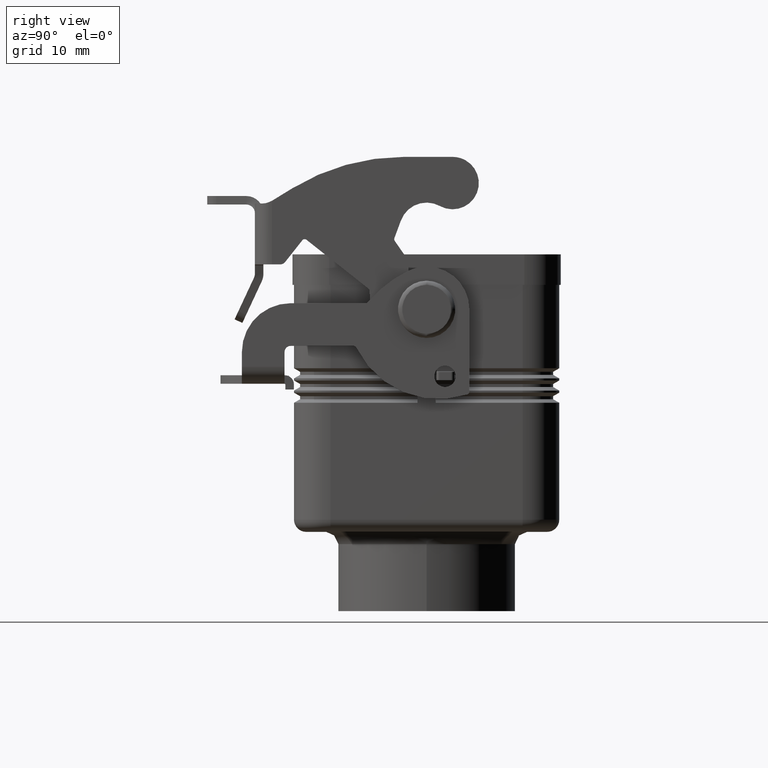
[diagram: clean part render]
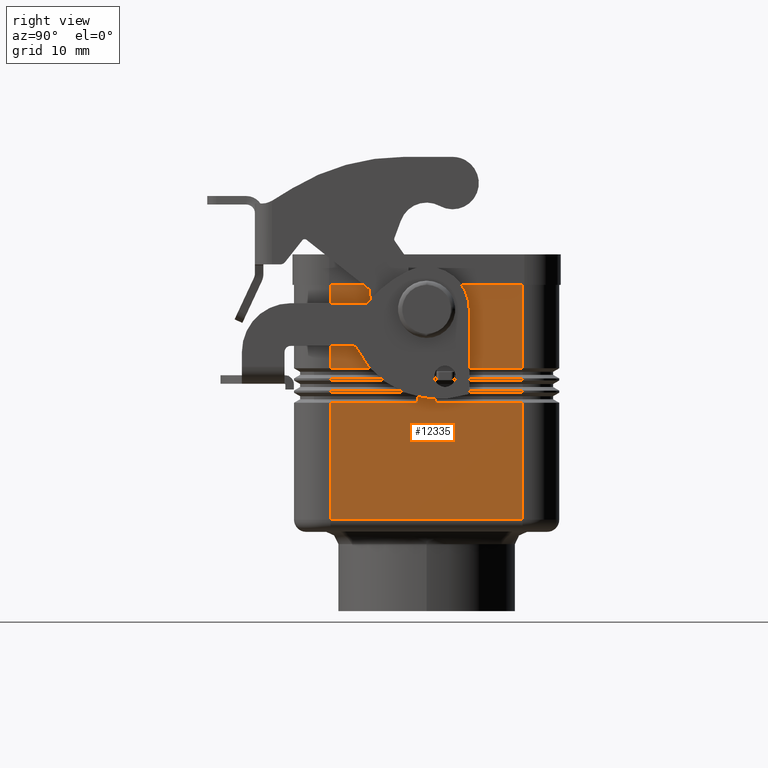
[diagram: same view with one face highlighted and labeled with its STEP entity id]
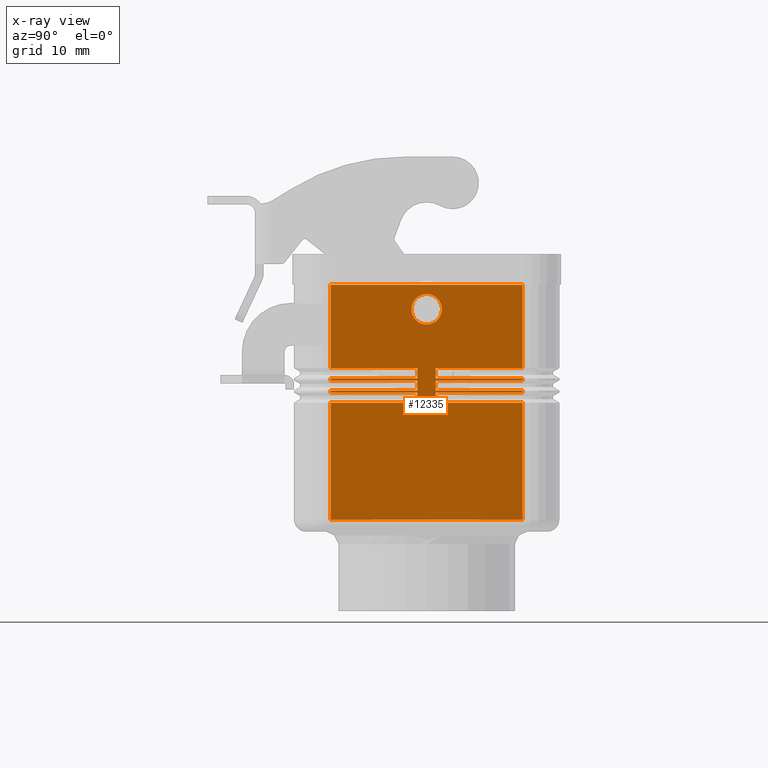
[diagram: x-ray of the same camera — body ghosted, the highlighted face saturated]
A machine part, right view. The second image highlights one B-rep face of the part: STEP entity #12335.
The next image is the same camera in x-ray: the body ghosted, the highlighted face saturated — about 0% of this face is hidden behind the body in this view.
In plain terms, the highlighted planar face has unit normal (1, 0, 0).
Its self-contained STEP definition (entity closure, byte-faithful):
#9078=CARTESIAN_POINT('',(30.000000000000018,0.0,2.500000000000018));
#9079=VERTEX_POINT('',#9078);
#9088=CARTESIAN_POINT('',(30.0,3.061516E-016,-2.499999999999985));
#9089=VERTEX_POINT('',#9088);
#9090=CARTESIAN_POINT('',(30.000000000000004,0.0,1.986582E-014));
#9091=DIRECTION('',(-1.0,0.0,0.0));
#9092=DIRECTION('',(0.0,0.0,1.0));
#9093=AXIS2_PLACEMENT_3D('',#9090,#9091,#9092);
#9094=CIRCLE('',#9093,2.500000000000005);
#9095=EDGE_CURVE('',#9089,#9079,#9094,.T.);
#9183=CARTESIAN_POINT('',(30.0,-1.500000000000000,-15.327350269189623));
#9184=VERTEX_POINT('',#9183);
#9185=CARTESIAN_POINT('',(29.999999999999996,-15.750000000000004,-15.327350269189619));
#9186=VERTEX_POINT('',#9185);
#9187=CARTESIAN_POINT('',(30.0,-1.500000000000000,-15.327350269189623));
#9188=DIRECTION('',(0.0,-1.0,0.0));
#9189=VECTOR('',#9188,14.250000000000004);
#9190=LINE('',#9187,#9189);
#9191=EDGE_CURVE('',#9184,#9186,#9190,.T.);
#9633=CARTESIAN_POINT('',(29.999999999999996,-15.750000000000004,-13.672649730810381));
#9634=VERTEX_POINT('',#9633);
#9704=CARTESIAN_POINT('',(30.0,-1.500000000000000,-13.672649730810377));
#9705=VERTEX_POINT('',#9704);
#9706=CARTESIAN_POINT('',(29.999999999999996,-15.750000000000004,-13.672649730810381));
#9707=DIRECTION('',(0.0,1.0,0.0));
#9708=VECTOR('',#9707,14.250000000000004);
#9709=LINE('',#9706,#9708);
#9710=EDGE_CURVE('',#9634,#9705,#9709,.T.);
#9752=CARTESIAN_POINT('',(30.0,-1.500000000000000,-13.672649730810377));
#9753=DIRECTION('',(0.0,0.0,-1.0));
#9754=VECTOR('',#9753,1.654700538379245);
#9755=LINE('',#9752,#9754);
#9756=EDGE_CURVE('',#9705,#9184,#9755,.T.);
#9769=CARTESIAN_POINT('',(30.0,-1.500000000000000,-13.327350269189623));
#9770=VERTEX_POINT('',#9769);
#9771=CARTESIAN_POINT('',(29.999999999999996,-15.750000000000004,-13.327350269189623));
#9772=VERTEX_POINT('',#9771);
#9773=CARTESIAN_POINT('',(30.0,-1.500000000000000,-13.327350269189623));
#9774=DIRECTION('',(0.0,-1.0,0.0));
#9775=VECTOR('',#9774,14.250000000000004);
#9776=LINE('',#9773,#9775);
#9777=EDGE_CURVE('',#9770,#9772,#9776,.T.);
#10219=CARTESIAN_POINT('',(29.999999999999996,-15.750000000000004,-11.672649730810383));
#10220=VERTEX_POINT('',#10219);
#10290=CARTESIAN_POINT('',(30.0,-1.500000000000000,-11.672649730810376));
#10291=VERTEX_POINT('',#10290);
#10292=CARTESIAN_POINT('',(29.999999999999996,-15.750000000000004,-11.672649730810383));
#10293=DIRECTION('',(0.0,1.0,0.0));
#10294=VECTOR('',#10293,14.250000000000004);
#10295=LINE('',#10292,#10294);
#10296=EDGE_CURVE('',#10220,#10291,#10295,.T.);
#10338=CARTESIAN_POINT('',(30.0,-1.500000000000000,-11.672649730810376));
#10339=DIRECTION('',(0.0,0.0,-1.0));
#10340=VECTOR('',#10339,1.654700538379247);
#10341=LINE('',#10338,#10340);
#10342=EDGE_CURVE('',#10291,#9770,#10341,.T.);
#10356=CARTESIAN_POINT('',(30.0,-15.750000000000004,-11.327350269189623));
#10357=VERTEX_POINT('',#10356);
#10358=CARTESIAN_POINT('',(30.0,-15.750000000000004,-11.327350269189623));
#10359=DIRECTION('',(0.0,0.0,-1.0));
#10360=VECTOR('',#10359,0.345299461620760);
#10361=LINE('',#10358,#10360);
#10362=EDGE_CURVE('',#10357,#10220,#10361,.T.);
#10388=CARTESIAN_POINT('',(29.999999999999996,-15.750000000000004,-13.327350269189623));
#10389=DIRECTION('',(0.0,0.0,-1.0));
#10390=VECTOR('',#10389,0.345299461620758);
#10391=LINE('',#10388,#10390);
#10392=EDGE_CURVE('',#9772,#9634,#10391,.T.);
#10418=CARTESIAN_POINT('',(30.0,-15.750000000000004,-34.500000000000000));
#10419=VERTEX_POINT('',#10418);
#10427=CARTESIAN_POINT('',(29.999999999999996,-15.750000000000004,-15.327350269189619));
#10428=DIRECTION('',(0.0,0.0,-1.0));
#10429=VECTOR('',#10428,19.172649730810381);
#10430=LINE('',#10427,#10429);
#10431=EDGE_CURVE('',#9186,#10419,#10430,.T.);
#10750=CARTESIAN_POINT('',(30.0,-1.500000000000000,-11.327350269189623));
#10751=VERTEX_POINT('',#10750);
#10752=CARTESIAN_POINT('',(30.0,-1.500000000000000,-11.327350269189623));
#10753=DIRECTION('',(0.0,-1.0,0.0));
#10754=VECTOR('',#10753,14.250000000000004);
#10755=LINE('',#10752,#10754);
#10756=EDGE_CURVE('',#10751,#10357,#10755,.T.);
#11154=CARTESIAN_POINT('',(30.0,-15.750000000000004,-9.672649730810377));
#11155=VERTEX_POINT('',#11154);
#11225=CARTESIAN_POINT('',(30.0,-1.500000000000000,-9.672649730810377));
#11226=VERTEX_POINT('',#11225);
#11227=CARTESIAN_POINT('',(30.0,-15.750000000000004,-9.672649730810377));
#11228=DIRECTION('',(0.0,1.0,0.0));
#11229=VECTOR('',#11228,14.250000000000004);
#11230=LINE('',#11227,#11229);
#11231=EDGE_CURVE('',#11155,#11226,#11230,.T.);
#11273=CARTESIAN_POINT('',(30.0,-1.500000000000000,-9.672649730810377));
#11274=DIRECTION('',(0.0,0.0,-1.0));
#11275=VECTOR('',#11274,1.654700538379245);
#11276=LINE('',#11273,#11275);
#11277=EDGE_CURVE('',#11226,#10751,#11276,.T.);
#11291=CARTESIAN_POINT('',(30.0,-15.750000000000004,4.000000000000002));
#11292=VERTEX_POINT('',#11291);
#11293=CARTESIAN_POINT('',(30.0,-15.750000000000004,4.000000000000002));
#11294=DIRECTION('',(0.0,0.0,-1.0));
#11295=VECTOR('',#11294,13.672649730810379);
#11296=LINE('',#11293,#11295);
#11297=EDGE_CURVE('',#11292,#11155,#11296,.T.);
#11364=CARTESIAN_POINT('',(30.0,15.750000000000004,-15.327350269189623));
#11365=VERTEX_POINT('',#11364);
#11366=CARTESIAN_POINT('',(30.0,1.500000000000000,-15.327350269189623));
#11367=VERTEX_POINT('',#11366);
#11368=CARTESIAN_POINT('',(30.0,15.750000000000004,-15.327350269189623));
#11369=DIRECTION('',(0.0,-1.0,0.0));
#11370=VECTOR('',#11369,14.250000000000004);
#11371=LINE('',#11368,#11370);
#11372=EDGE_CURVE('',#11365,#11367,#11371,.T.);
#11404=CARTESIAN_POINT('',(30.0,1.500000000000000,-13.672649730810377));
#11405=VERTEX_POINT('',#11404);
#11406=CARTESIAN_POINT('',(30.0,1.500000000000000,-15.327350269189623));
#11407=DIRECTION('',(0.0,0.0,1.0));
#11408=VECTOR('',#11407,1.654700538379245);
#11409=LINE('',#11406,#11408);
#11410=EDGE_CURVE('',#11367,#11405,#11409,.T.);
#11435=CARTESIAN_POINT('',(30.0,15.750000000000004,-13.672649730810377));
#11436=VERTEX_POINT('',#11435);
#11437=CARTESIAN_POINT('',(30.0,1.500000000000000,-13.672649730810377));
#11438=DIRECTION('',(0.0,1.0,0.0));
#11439=VECTOR('',#11438,14.250000000000004);
#11440=LINE('',#11437,#11439);
#11441=EDGE_CURVE('',#11405,#11436,#11440,.T.);
#11801=CARTESIAN_POINT('',(30.0,15.750000000000004,-13.327350269189623));
#11802=VERTEX_POINT('',#11801);
#11803=CARTESIAN_POINT('',(30.0,1.500000000000000,-13.327350269189623));
#11804=VERTEX_POINT('',#11803);
#11805=CARTESIAN_POINT('',(30.0,15.750000000000004,-13.327350269189623));
#11806=DIRECTION('',(0.0,-1.0,0.0));
#11807=VECTOR('',#11806,14.250000000000004);
#11808=LINE('',#11805,#11807);
#11809=EDGE_CURVE('',#11802,#11804,#11808,.T.);
#11841=CARTESIAN_POINT('',(30.0,1.500000000000000,-11.672649730810376));
#11842=VERTEX_POINT('',#11841);
#11843=CARTESIAN_POINT('',(30.0,1.500000000000000,-13.327350269189623));
#11844=DIRECTION('',(0.0,0.0,1.0));
#11845=VECTOR('',#11844,1.654700538379247);
#11846=LINE('',#11843,#11845);
#11847=EDGE_CURVE('',#11804,#11842,#11846,.T.);
#11872=CARTESIAN_POINT('',(30.0,15.750000000000004,-11.672649730810376));
#11873=VERTEX_POINT('',#11872);
#11874=CARTESIAN_POINT('',(30.0,1.500000000000000,-11.672649730810376));
#11875=DIRECTION('',(0.0,1.0,0.0));
#11876=VECTOR('',#11875,14.250000000000004);
#11877=LINE('',#11874,#11876);
#11878=EDGE_CURVE('',#11842,#11873,#11877,.T.);
#12233=CARTESIAN_POINT('',(30.0,-15.750000000000004,9.0));
#12234=DIRECTION('',(1.0,0.0,0.0));
#12235=DIRECTION('',(0.0,0.0,-1.0));
#12236=AXIS2_PLACEMENT_3D('',#12233,#12234,#12235);
#12237=PLANE('',#12236);
#12238=ORIENTED_EDGE('',*,*,#9191,.T.);
#12239=ORIENTED_EDGE('',*,*,#10431,.T.);
#12240=CARTESIAN_POINT('',(30.0,15.750000000000004,-34.500000000000000));
#12241=VERTEX_POINT('',#12240);
#12242=CARTESIAN_POINT('',(30.0,15.750000000000004,-34.500000000000000));
#12243=DIRECTION('',(0.0,-1.0,0.0));
#12244=VECTOR('',#12243,31.500000000000007);
#12245=LINE('',#12242,#12244);
#12246=EDGE_CURVE('',#12241,#10419,#12245,.T.);
#12247=ORIENTED_EDGE('',*,*,#12246,.F.);
#12248=CARTESIAN_POINT('',(30.0,15.750000000000004,-15.327350269189623));
#12249=DIRECTION('',(0.0,0.0,-1.0));
#12250=VECTOR('',#12249,19.172649730810377);
#12251=LINE('',#12248,#12250);
#12252=EDGE_CURVE('',#11365,#12241,#12251,.T.);
#12253=ORIENTED_EDGE('',*,*,#12252,.F.);
#12254=ORIENTED_EDGE('',*,*,#11372,.T.);
#12255=ORIENTED_EDGE('',*,*,#11410,.T.);
#12256=ORIENTED_EDGE('',*,*,#11441,.T.);
#12257=CARTESIAN_POINT('',(30.0,15.750000000000004,-13.327350269189623));
#12258=DIRECTION('',(0.0,0.0,-1.0));
#12259=VECTOR('',#12258,0.345299461620755);
#12260=LINE('',#12257,#12259);
#12261=EDGE_CURVE('',#11802,#11436,#12260,.T.);
#12262=ORIENTED_EDGE('',*,*,#12261,.F.);
#12263=ORIENTED_EDGE('',*,*,#11809,.T.);
#12264=ORIENTED_EDGE('',*,*,#11847,.T.);
#12265=ORIENTED_EDGE('',*,*,#11878,.T.);
#12266=CARTESIAN_POINT('',(30.0,15.750000000000004,-11.327350269189623));
#12267=VERTEX_POINT('',#12266);
#12268=CARTESIAN_POINT('',(30.0,15.750000000000004,-11.327350269189623));
#12269=DIRECTION('',(0.0,0.0,-1.0));
#12270=VECTOR('',#12269,0.345299461620753);
#12271=LINE('',#12268,#12270);
#12272=EDGE_CURVE('',#12267,#11873,#12271,.T.);
#12273=ORIENTED_EDGE('',*,*,#12272,.F.);
#12274=CARTESIAN_POINT('',(30.0,1.500000000000000,-11.327350269189623));
#12275=VERTEX_POINT('',#12274);
#12276=CARTESIAN_POINT('',(30.0,15.750000000000004,-11.327350269189623));
#12277=DIRECTION('',(0.0,-1.0,0.0));
#12278=VECTOR('',#12277,14.250000000000004);
#12279=LINE('',#12276,#12278);
#12280=EDGE_CURVE('',#12267,#12275,#12279,.T.);
#12281=ORIENTED_EDGE('',*,*,#12280,.T.);
#12282=CARTESIAN_POINT('',(30.0,1.500000000000000,-9.672649730810377));
#12283=VERTEX_POINT('',#12282);
#12284=CARTESIAN_POINT('',(30.0,1.500000000000000,-11.327350269189623));
#12285=DIRECTION('',(0.0,0.0,1.0));
#12286=VECTOR('',#12285,1.654700538379245);
#12287=LINE('',#12284,#12286);
#12288=EDGE_CURVE('',#12275,#12283,#12287,.T.);
#12289=ORIENTED_EDGE('',*,*,#12288,.T.);
#12290=CARTESIAN_POINT('',(30.0,15.750000000000004,-9.672649730810377));
#12291=VERTEX_POINT('',#12290);
#12292=CARTESIAN_POINT('',(30.0,1.500000000000000,-9.672649730810377));
#12293=DIRECTION('',(0.0,1.0,0.0));
#12294=VECTOR('',#12293,14.250000000000004);
#12295=LINE('',#12292,#12294);
#12296=EDGE_CURVE('',#12283,#12291,#12295,.T.);
#12297=ORIENTED_EDGE('',*,*,#12296,.T.);
#12298=CARTESIAN_POINT('',(30.0,15.750000000000004,4.000000000000002));
#12299=VERTEX_POINT('',#12298);
#12300=CARTESIAN_POINT('',(30.0,15.750000000000004,4.000000000000002));
#12301=DIRECTION('',(0.0,0.0,-1.0));
#12302=VECTOR('',#12301,13.672649730810379);
#12303=LINE('',#12300,#12302);
#12304=EDGE_CURVE('',#12299,#12291,#12303,.T.);
#12305=ORIENTED_EDGE('',*,*,#12304,.F.);
#12306=CARTESIAN_POINT('',(30.0,15.750000000000004,4.000000000000002));
#12307=DIRECTION('',(0.0,-1.0,0.0));
#12308=VECTOR('',#12307,31.500000000000007);
#12309=LINE('',#12306,#12308);
#12310=EDGE_CURVE('',#12299,#11292,#12309,.T.);
#12311=ORIENTED_EDGE('',*,*,#12310,.T.);
#12312=ORIENTED_EDGE('',*,*,#11297,.T.);
#12313=ORIENTED_EDGE('',*,*,#11231,.T.);
#12314=ORIENTED_EDGE('',*,*,#11277,.T.);
#12315=ORIENTED_EDGE('',*,*,#10756,.T.);
#12316=ORIENTED_EDGE('',*,*,#10362,.T.);
#12317=ORIENTED_EDGE('',*,*,#10296,.T.);
#12318=ORIENTED_EDGE('',*,*,#10342,.T.);
#12319=ORIENTED_EDGE('',*,*,#9777,.T.);
#12320=ORIENTED_EDGE('',*,*,#10392,.T.);
#12321=ORIENTED_EDGE('',*,*,#9710,.T.);
#12322=ORIENTED_EDGE('',*,*,#9756,.T.);
#12323=EDGE_LOOP('',(#12238,#12239,#12247,#12253,#12254,#12255,#12256,#12262,#12263,#12264,#12265,#12273,#12281,#12289,#12297,#12305,#12311,#12312,#12313,#12314,#12315,#12316,#12317,#12318,#12319,#12320,#12321,#12322));
#12324=FACE_OUTER_BOUND('',#12323,.T.);
#12325=CARTESIAN_POINT('',(30.000000000000004,0.0,1.986582E-014));
#12326=DIRECTION('',(-1.0,0.0,0.0));
#12327=DIRECTION('',(0.0,0.0,1.0));
#12328=AXIS2_PLACEMENT_3D('',#12325,#12326,#12327);
#12329=CIRCLE('',#12328,2.500000000000005);
#12330=EDGE_CURVE('',#9079,#9089,#12329,.T.);
#12331=ORIENTED_EDGE('',*,*,#12330,.T.);
#12332=ORIENTED_EDGE('',*,*,#9095,.T.);
#12333=EDGE_LOOP('',(#12331,#12332));
#12334=FACE_BOUND('',#12333,.T.);
#12335=ADVANCED_FACE('',(#12324,#12334),#12237,.T.);